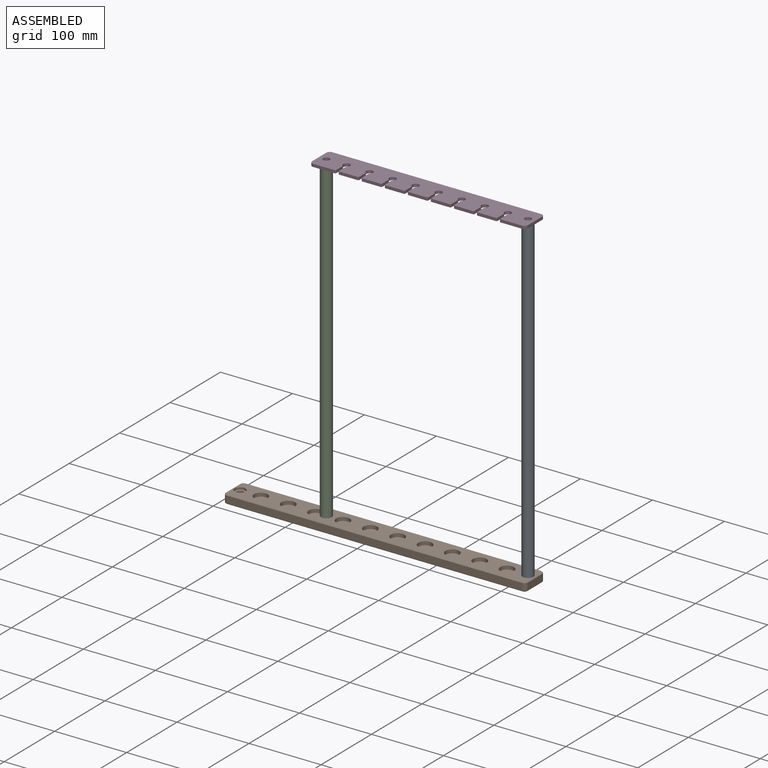
[diagram: assembled view]
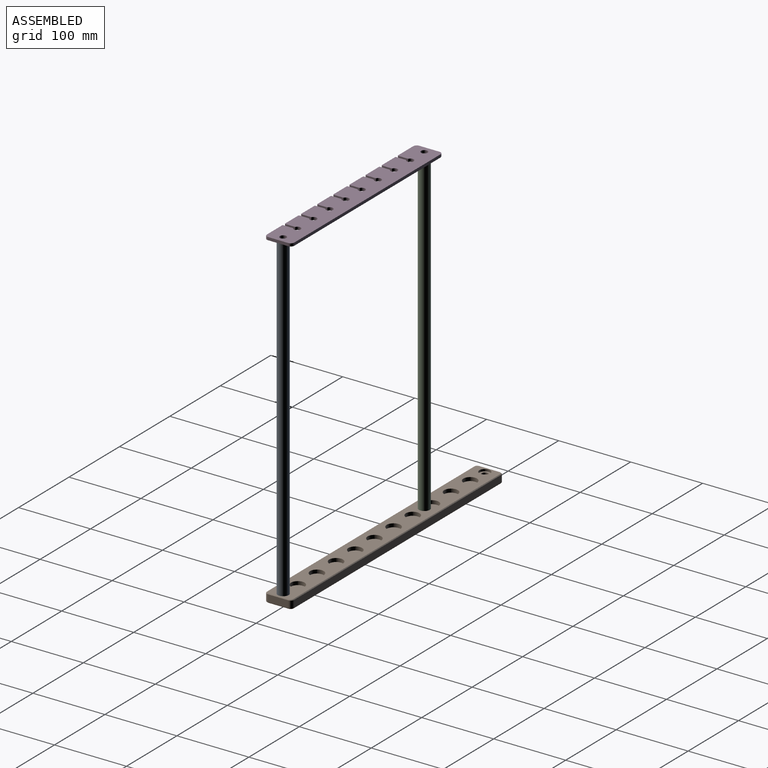
[diagram: assembled view, second angle]
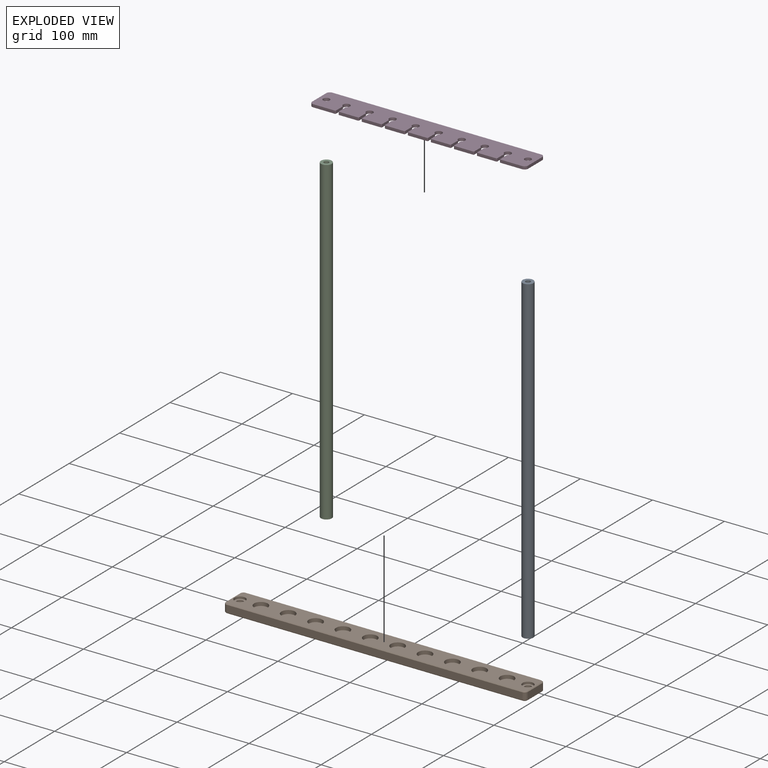
[diagram: exploded view]
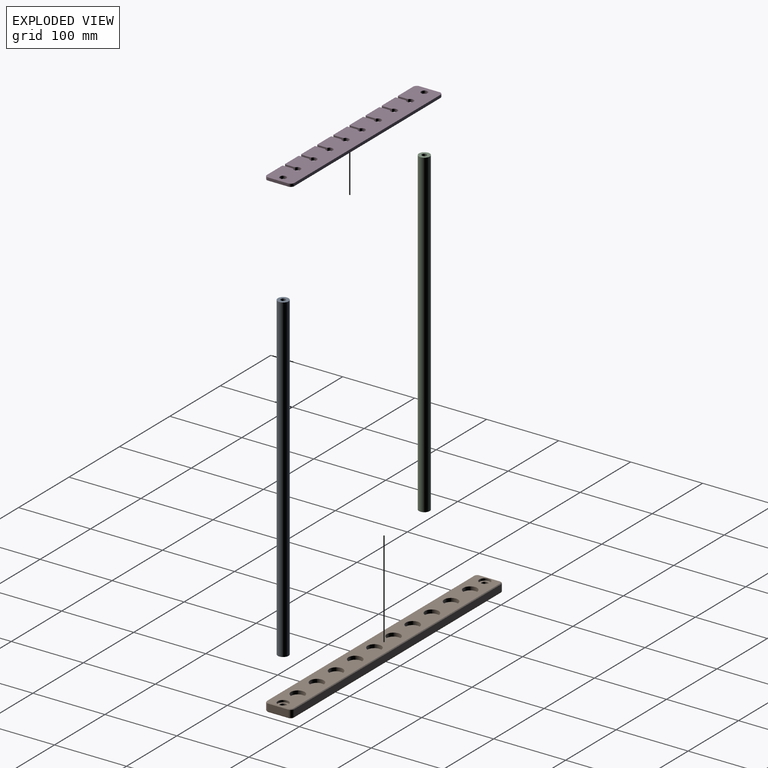
[diagram: exploded view, second angle]
ASSEMBLY  parts=4 mates=2
PART A: 7 faces, bbox 15x15x445 mm
  f0: cylinder r=7.5mm len=445mm, axis (0,0,-1), area 20970.1mm2, adj f1,f2
  f1: plane 15x15mm, normal (0,0,1), area 140.4mm2, adj f0,f6
  f2: plane 15x15mm, normal (0,0,-1), area 140.4mm2, adj f0,f4
  f3: cone r=0mm half-angle=59deg, axis (0,0,-1), area 42.4mm2, adj f4
  f4: cylinder r=3.4mm len=28.75mm, axis (0,0,-1), area 614.2mm2, adj f2,f3
  f5: cone r=0mm half-angle=59deg, axis (0,0,1), area 42.4mm2, adj f6
  f6: cylinder r=3.4mm len=28.75mm, axis (0,0,1), area 614.2mm2, adj f1,f5
PART B: 56 faces, bbox 420x38x12 mm
  f0: plane 410x10mm, normal (0,1,0), area 4100mm2, adj f30,f33,f41,f42
  f1: plane 28x10mm, normal (-1,0,0), area 280mm2, adj f30,f31,f37,f45
  f2: plane 410x10mm, normal (0,-1,0), area 4100mm2, adj f31,f32,f34,f49
  f3: plane 28x10mm, normal (1,0,0), area 280mm2, adj f32,f33,f38,f46
  f4: plane 418x36mm, normal (0,0,1), area 11840.8mm2, adj f6,f8,f10,f12,f14,f16,f18,f20
  f5: plane 418x36mm, normal (0,0,-1), area 14680.8mm2, adj f34,f35,f36,f37,f38,f39,f40,f41
  f6: cylinder r=9.5mm len=19mm, axis (0,0,1), area 298.5mm2, adj f4,f7
  f7: plane 19x19mm, normal (0,0,1), area 283.5mm2, adj f6
  f8: cylinder r=9.5mm len=19mm, axis (0,0,1), area 298.5mm2, adj f4,f9
  f9: plane 19x19mm, normal (0,0,1), area 283.5mm2, adj f8
  f10: cylinder r=9.5mm len=19mm, axis (0,0,1), area 298.5mm2, adj f4,f11
  f11: plane 19x19mm, normal (0,0,1), area 283.5mm2, adj f10
  f12: cylinder r=9.5mm len=19mm, axis (0,0,1), area 298.5mm2, adj f4,f13
  f13: plane 19x19mm, normal (0,0,1), area 283.5mm2, adj f12
  f14: cylinder r=9.5mm len=19mm, axis (0,0,1), area 298.5mm2, adj f4,f15
  f15: plane 19x19mm, normal (0,0,1), area 283.5mm2, adj f14
  f16: cylinder r=9.5mm len=19mm, axis (0,0,1), area 298.5mm2, adj f4,f17
  f17: plane 19x19mm, normal (0,0,1), area 283.5mm2, adj f16
  f18: cylinder r=9.5mm len=19mm, axis (0,0,1), area 298.5mm2, adj f4,f19
  f19: plane 19x19mm, normal (0,0,1), area 283.5mm2, adj f18
  f20: cylinder r=9.5mm len=19mm, axis (0,0,1), area 298.5mm2, adj f4,f21
  f21: plane 19x19mm, normal (0,0,1), area 283.5mm2, adj f20
  f22: cylinder r=9.5mm len=19mm, axis (0,0,1), area 298.5mm2, adj f4,f23
  f23: plane 19x19mm, normal (0,0,1), area 283.5mm2, adj f22
  f24: cylinder r=9.5mm len=19mm, axis (0,0,1), area 298.5mm2, adj f4,f25
  f25: plane 19x19mm, normal (0,0,1), area 283.5mm2, adj f24
  f26: cylinder r=7.55mm len=15.1mm, axis (0,0,1), area 142.3mm2, adj f4,f27
  f27: plane 15.1x15.1mm, normal (0,0,1), area 115.5mm2, adj f26,f53
  f28: cylinder r=7.55mm len=15.1mm, axis (0,0,1), area 142.3mm2, adj f4,f29
  f29: plane 15.1x15.1mm, normal (0,0,1), area 115.5mm2, adj f28,f50
  f30: cylinder r=5mm len=10mm, axis (0,0,1), area 78.5mm2, adj f0,f1,f39,f43
  f31: cylinder r=5mm len=10mm, axis (0,0,-1), area 78.5mm2, adj f1,f2,f35,f47
  f32: cylinder r=5mm len=10mm, axis (0,0,1), area 78.5mm2, adj f2,f3,f36,f48
  f33: cylinder r=5mm len=10mm, axis (0,0,-1), area 78.5mm2, adj f0,f3,f40,f44
  f34: plane 410x1mm, normal (0,-0.71,-0.71), area 579.8mm2, adj f2,f5,f35,f36
  f35: cone r=4mm half-angle=45deg, axis (0,0,1), area 10mm2, adj f5,f31,f34,f37
  f36: cone r=4mm half-angle=45deg, axis (0,0,1), area 10mm2, adj f5,f32,f34,f38
  f37: plane 28x1mm, normal (-0.71,0,-0.71), area 39.6mm2, adj f1,f5,f35,f39
  f38: plane 28x1mm, normal (0.71,0,-0.71), area 39.6mm2, adj f3,f5,f36,f40
  f39: cone r=4mm half-angle=45deg, axis (0,0,1), area 10mm2, adj f5,f30,f37,f41
  f40: cone r=4mm half-angle=45deg, axis (0,0,1), area 10mm2, adj f5,f33,f38,f41
  f41: plane 410x1mm, normal (0,0.71,-0.71), area 579.8mm2, adj f0,f5,f39,f40
  f42: plane 410x1mm, normal (0,0.71,0.71), area 579.8mm2, adj f0,f4,f43,f44
  f43: cone r=4mm half-angle=45deg, axis (0,0,-1), area 10mm2, adj f4,f30,f42,f45
  f44: cone r=4mm half-angle=45deg, axis (0,0,-1), area 10mm2, adj f4,f33,f42,f46
  f45: plane 28x1mm, normal (-0.71,0,0.71), area 39.6mm2, adj f1,f4,f43,f47
  f46: plane 28x1mm, normal (0.71,0,0.71), area 39.6mm2, adj f3,f4,f44,f48
  f47: cone r=4mm half-angle=45deg, axis (0,0,-1), area 10mm2, adj f4,f31,f45,f49
  f48: cone r=4mm half-angle=45deg, axis (0,0,-1), area 10mm2, adj f4,f32,f46,f49
  f49: plane 410x1mm, normal (0,-0.71,0.71), area 579.8mm2, adj f2,f4,f47,f48
  f50: cylinder r=4.5mm len=9mm, axis (0,0,-1), area 84.8mm2, adj f29,f51
  f51: plane 15x15mm, normal (0,0,-1), area 113.1mm2, adj f50,f52
  f52: cylinder r=7.5mm len=15mm, axis (0,0,-1), area 282.7mm2, adj f5,f51
  f53: cylinder r=4.5mm len=9mm, axis (0,0,-1), area 84.8mm2, adj f27,f54
  f54: plane 15x15mm, normal (0,0,-1), area 113.1mm2, adj f53,f55
  f55: cylinder r=7.5mm len=15mm, axis (0,0,-1), area 282.7mm2, adj f5,f54
PART C: same geometry as A
PART D: 76 faces, bbox 300x38x4 mm
  f0: plane 26x4mm, normal (0,1,0), area 104mm2, adj f8,f9,f69,f72
  f1: plane 26x4mm, normal (0,1,0), area 104mm2, adj f8,f9,f66,f68
  f2: plane 26x4mm, normal (0,1,0), area 104mm2, adj f8,f9,f62,f67
  f3: plane 26x4mm, normal (0,1,0), area 104mm2, adj f8,f9,f58,f63
  f4: plane 26x4mm, normal (0,1,0), area 104mm2, adj f8,f9,f54,f59
  f5: plane 26x4mm, normal (0,1,0), area 104mm2, adj f8,f9,f50,f55
  f6: plane 26x4mm, normal (0,1,0), area 104mm2, adj f8,f9,f46,f51
  f7: plane 30x4mm, normal (0,1,0), area 120mm2, adj f8,f9,f17,f47
  f8: plane 300x38mm, normal (0,0,1), area 10229.5mm2, adj f0,f1,f2,f3,f4,f5,f6,f7
  f9: plane 300x38mm, normal (0,0,-1), area 10229.5mm2, adj f0,f1,f2,f3,f4,f5,f6,f7
  f10: plane 30x4mm, normal (0,1,0), area 120mm2, adj f8,f9,f14,f75
  f11: plane 28x4mm, normal (-1,0,0), area 112mm2, adj f8,f9,f14,f15
  f12: plane 290x4mm, normal (0,-1,0), area 1160mm2, adj f8,f9,f15,f16
  f13: plane 28x4mm, normal (1,0,0), area 112mm2, adj f8,f9,f16,f17
  f14: cylinder r=5mm len=5mm, axis (0,0,1), area 31.4mm2, adj f8,f9,f10,f11
  f15: cylinder r=5mm len=5mm, axis (0,0,-1), area 31.4mm2, adj f8,f9,f11,f12
  f16: cylinder r=5mm len=5mm, axis (0,0,1), area 31.4mm2, adj f8,f9,f12,f13
  f17: cylinder r=5mm len=5mm, axis (0,0,-1), area 31.4mm2, adj f7,f8,f9,f13
  f18: cylinder r=4.5mm len=9mm, axis (0,0,1), area 113.1mm2, adj f8,f9
  f19: cylinder r=4.5mm len=9mm, axis (0,0,-1), area 113.1mm2, adj f8,f9
  f20: plane 13.15x4mm, normal (-1,0,0), area 52.6mm2, adj f8,f9,f44,f47
  f21: plane 13.15x4mm, normal (1,0,0), area 52.6mm2, adj f8,f9,f45,f46
  f22: cylinder r=4.7mm len=9.4mm, axis (0,0,1), area 97.3mm2, adj f8,f9,f44,f45
  f23: plane 13.15x4mm, normal (-1,0,0), area 52.6mm2, adj f8,f9,f48,f51
  f24: plane 13.15x4mm, normal (1,0,0), area 52.6mm2, adj f8,f9,f49,f50
  f25: cylinder r=4.7mm len=9.4mm, axis (0,0,1), area 97.3mm2, adj f8,f9,f48,f49
  f26: plane 13.15x4mm, normal (-1,0,0), area 52.6mm2, adj f8,f9,f52,f55
  f27: plane 13.15x4mm, normal (1,0,0), area 52.6mm2, adj f8,f9,f53,f54
  f28: cylinder r=4.7mm len=9.4mm, axis (0,0,1), area 97.3mm2, adj f8,f9,f52,f53
  f29: plane 13.15x4mm, normal (-1,0,0), area 52.6mm2, adj f8,f9,f56,f59
  f30: plane 13.15x4mm, normal (1,0,0), area 52.6mm2, adj f8,f9,f57,f58
  f31: cylinder r=4.7mm len=9.4mm, axis (0,0,1), area 97.3mm2, adj f8,f9,f56,f57
  f32: plane 13.15x4mm, normal (-1,0,0), area 52.6mm2, adj f8,f9,f60,f63
  f33: plane 13.15x4mm, normal (1,0,0), area 52.6mm2, adj f8,f9,f61,f62
  f34: cylinder r=4.7mm len=9.4mm, axis (0,0,1), area 97.3mm2, adj f8,f9,f60,f61
  f35: plane 13.15x4mm, normal (-1,0,0), area 52.6mm2, adj f8,f9,f64,f67
  f36: plane 13.15x4mm, normal (1,0,0), area 52.6mm2, adj f8,f9,f65,f66
  f37: cylinder r=4.7mm len=9.4mm, axis (0,0,1), area 97.3mm2, adj f8,f9,f64,f65
  f38: plane 13.15x4mm, normal (-1,0,0), area 52.6mm2, adj f8,f9,f68,f71
  f39: plane 13.15x4mm, normal (1,0,0), area 52.6mm2, adj f8,f9,f69,f70
  f40: cylinder r=4.7mm len=9.4mm, axis (0,0,1), area 97.3mm2, adj f8,f9,f70,f71
  f41: plane 13.15x4mm, normal (1,0,0), area 52.6mm2, adj f8,f9,f74,f75
  f42: cylinder r=4.7mm len=9.4mm, axis (0,0,1), area 97.3mm2, adj f8,f9,f73,f74
  f43: plane 13.15x4mm, normal (-1,0,0), area 52.6mm2, adj f8,f9,f72,f73
  f44: cylinder r=1mm len=4mm, axis (0,0,1), area 4.1mm2, adj f8,f9,f20,f22
  f45: cylinder r=1mm len=4mm, axis (0,0,1), area 4.1mm2, adj f8,f9,f21,f22
  f46: cylinder r=1mm len=4mm, axis (0,0,-1), area 6.3mm2, adj f6,f8,f9,f21
  f47: cylinder r=1mm len=4mm, axis (0,0,1), area 6.3mm2, adj f7,f8,f9,f20
  f48: cylinder r=1mm len=4mm, axis (0,0,1), area 4.1mm2, adj f8,f9,f23,f25
  f49: cylinder r=1mm len=4mm, axis (0,0,1), area 4.1mm2, adj f8,f9,f24,f25
  f50: cylinder r=1mm len=4mm, axis (0,0,-1), area 6.3mm2, adj f5,f8,f9,f24
  f51: cylinder r=1mm len=4mm, axis (0,0,1), area 6.3mm2, adj f6,f8,f9,f23
  f52: cylinder r=1mm len=4mm, axis (0,0,1), area 4.1mm2, adj f8,f9,f26,f28
  f53: cylinder r=1mm len=4mm, axis (0,0,1), area 4.1mm2, adj f8,f9,f27,f28
  f54: cylinder r=1mm len=4mm, axis (0,0,-1), area 6.3mm2, adj f4,f8,f9,f27
  f55: cylinder r=1mm len=4mm, axis (0,0,1), area 6.3mm2, adj f5,f8,f9,f26
  f56: cylinder r=1mm len=4mm, axis (0,0,1), area 4.1mm2, adj f8,f9,f29,f31
  f57: cylinder r=1mm len=4mm, axis (0,0,1), area 4.1mm2, adj f8,f9,f30,f31
  f58: cylinder r=1mm len=4mm, axis (0,0,-1), area 6.3mm2, adj f3,f8,f9,f30
  f59: cylinder r=1mm len=4mm, axis (0,0,1), area 6.3mm2, adj f4,f8,f9,f29
  f60: cylinder r=1mm len=4mm, axis (0,0,1), area 4.1mm2, adj f8,f9,f32,f34
  f61: cylinder r=1mm len=4mm, axis (0,0,1), area 4.1mm2, adj f8,f9,f33,f34
  f62: cylinder r=1mm len=4mm, axis (0,0,-1), area 6.3mm2, adj f2,f8,f9,f33
  f63: cylinder r=1mm len=4mm, axis (0,0,1), area 6.3mm2, adj f3,f8,f9,f32
  f64: cylinder r=1mm len=4mm, axis (0,0,1), area 4.1mm2, adj f8,f9,f35,f37
  f65: cylinder r=1mm len=4mm, axis (0,0,1), area 4.1mm2, adj f8,f9,f36,f37
  f66: cylinder r=1mm len=4mm, axis (0,0,-1), area 6.3mm2, adj f1,f8,f9,f36
  f67: cylinder r=1mm len=4mm, axis (0,0,1), area 6.3mm2, adj f2,f8,f9,f35
  f68: cylinder r=1mm len=4mm, axis (0,0,1), area 6.3mm2, adj f1,f8,f9,f38
  f69: cylinder r=1mm len=4mm, axis (0,0,-1), area 6.3mm2, adj f0,f8,f9,f39
  f70: cylinder r=1mm len=4mm, axis (0,0,1), area 4.1mm2, adj f8,f9,f39,f40
  f71: cylinder r=1mm len=4mm, axis (0,0,1), area 4.1mm2, adj f8,f9,f38,f40
  f72: cylinder r=1mm len=4mm, axis (0,0,1), area 6.3mm2, adj f0,f8,f9,f43
  f73: cylinder r=1mm len=4mm, axis (0,0,1), area 4.1mm2, adj f8,f9,f42,f43
  f74: cylinder r=1mm len=4mm, axis (0,0,1), area 4.1mm2, adj f8,f9,f41,f42
  f75: cylinder r=1mm len=4mm, axis (0,0,-1), area 6.3mm2, adj f8,f9,f10,f41
PLACE A rot(axis=(1,0,0),180deg) t=(-4.68,-25.61,40.75)mm
PLACE B t=(-204.68,-25.61,-414.75)mm
PLACE C t=(-284.68,-25.61,-404.25)mm
PLACE D rot(axis=(1,0,0),180deg) t=(-144.68,-25.61,44.75)mm
MATE fastened D.f18 <-> A.f0  axis (0,0,-1) through (-4.68,-25.61,40.75)mm
MATE fastened A.f0 <-> B.f26  axis (0,0,-1) through (-4.68,-25.61,-404.25)mm
